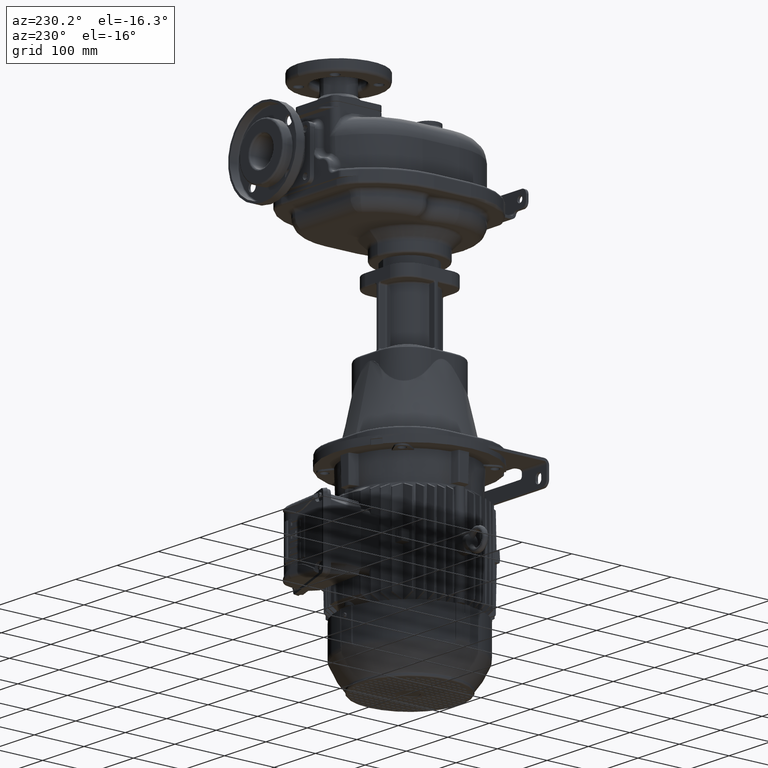
[diagram: clean part render]
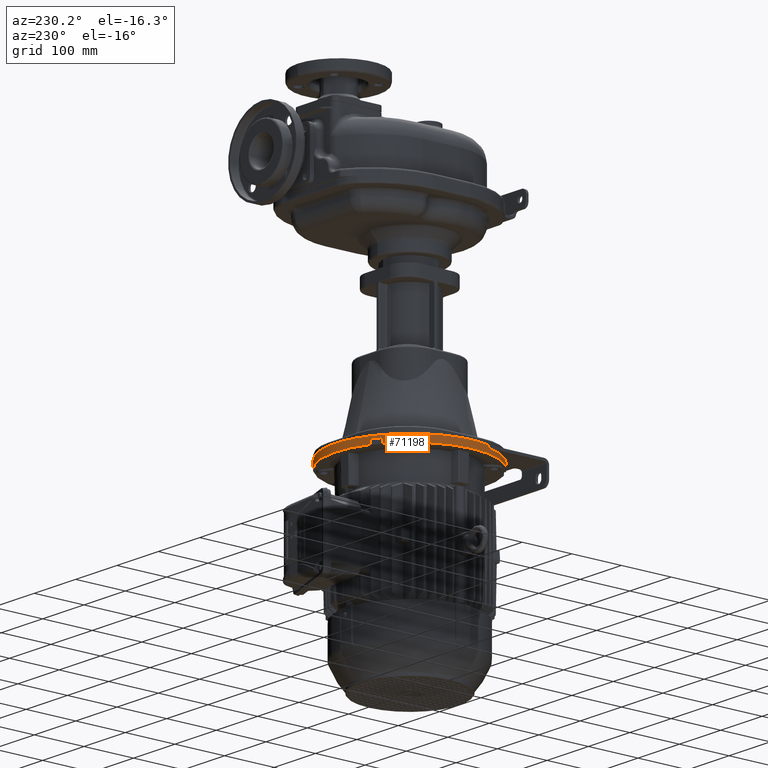
[diagram: same view with one face highlighted and labeled with its STEP entity id]
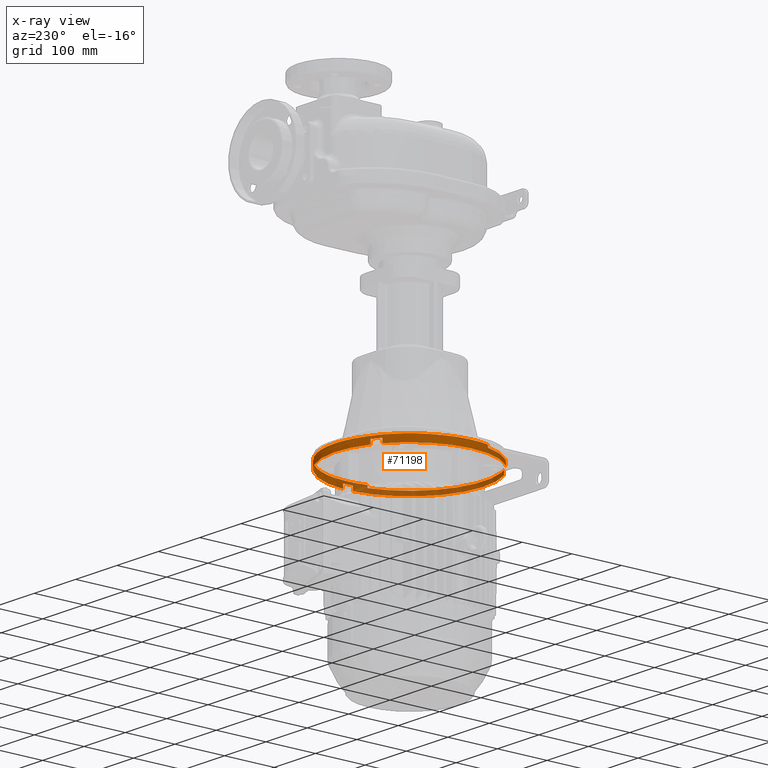
[diagram: x-ray of the same camera — body ghosted, the highlighted face saturated]
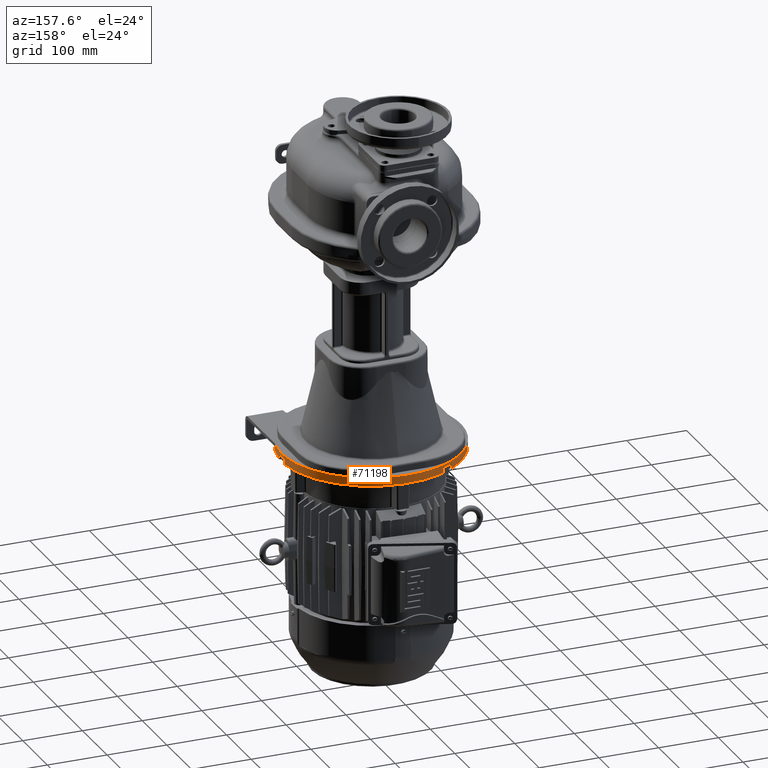
[diagram: same view with one face highlighted and labeled with its STEP entity id]
A machine part, auxiliary view. The second image highlights one B-rep face of the part: STEP entity #71198.
The next image is the same camera in x-ray: the body ghosted, the highlighted face saturated — about 31% of this face is hidden behind the body in this view.
A second angle (auxiliary view) of the same face is appended — the face is thin or edge-on in the first view.
In plain terms, the highlighted cylindrical surface (partial cylindrical patch) has radius 150 mm, axis along (0, 0, -1).
Its self-contained STEP definition (entity closure, byte-faithful):
#17651=CARTESIAN_POINT('',(0.E0,1.6E2,-4.465E2));
#17652=DIRECTION('',(0.E0,0.E0,-1.E0));
#17653=DIRECTION('',(-4.411526246509E-1,8.974320931211E-1,0.E0));
#17654=AXIS2_PLACEMENT_3D('',#17651,#17652,#17653);
#17680=CARTESIAN_POINT('',(0.E0,1.6E2,-4.465E2));
#17681=DIRECTION('',(0.E0,0.E0,-1.E0));
#17682=DIRECTION('',(9.977753031397E-1,-6.666666666667E-2,0.E0));
#17683=AXIS2_PLACEMENT_3D('',#17680,#17681,#17682);
#17832=CARTESIAN_POINT('',(0.E0,1.6E2,-4.375E2));
#17833=DIRECTION('',(0.E0,0.E0,-1.E0));
#17834=DIRECTION('',(9.977753031397E-1,6.666666666667E-2,0.E0));
#17835=AXIS2_PLACEMENT_3D('',#17832,#17833,#17834);
#17857=DIRECTION('',(0.E0,0.E0,1.E0));
#17858=VECTOR('',#17857,9.E0);
#17859=CARTESIAN_POINT('',(1.496662954710E2,1.5E2,-4.465E2));
#17860=LINE('',#17859,#17858);
#17861=DIRECTION('',(0.E0,0.E0,-1.E0));
#17862=VECTOR('',#17861,9.E0);
#17863=CARTESIAN_POINT('',(-6.617289369763E1,2.538518603184E1,-4.375E2));
#17864=LINE('',#17863,#17862);
#17865=DIRECTION('',(2.273736754432E-14,0.E0,1.E0));
#17866=VECTOR('',#17865,5.E0);
#17867=CARTESIAN_POINT('',(1.455882352941E2,1.238881495359E2,-4.375E2));
#17868=LINE('',#17867,#17866);
#17869=DIRECTION('',(-2.842170943040E-14,4.263256414561E-14,1.E0));
#17870=VECTOR('',#17869,5.E0);
#17871=CARTESIAN_POINT('',(-1.455882352941E2,1.238881495359E2,-4.375E2));
#17872=LINE('',#17871,#17870);
#17873=DIRECTION('',(0.E0,0.E0,1.E0));
#17874=VECTOR('',#17873,9.E0);
#17875=CARTESIAN_POINT('',(-8.349340177332E1,3.538518603184E1,-4.465E2));
#17876=LINE('',#17875,#17874);
#17877=CARTESIAN_POINT('',(0.E0,1.6E2,-4.465E2));
#17878=DIRECTION('',(0.E0,0.E0,-1.E0));
#17879=DIRECTION('',(-5.566226784888E-1,-8.307654264544E-1,0.E0));
#17880=AXIS2_PLACEMENT_3D('',#17877,#17878,#17879);
#17882=DIRECTION('',(0.E0,0.E0,-1.E0));
#17883=VECTOR('',#17882,9.E0);
#17884=CARTESIAN_POINT('',(-8.349340177332E1,2.846148139682E2,-4.375E2));
#17885=LINE('',#17884,#17883);
#17886=DIRECTION('',(0.E0,0.E0,1.E0));
#17887=VECTOR('',#17886,9.E0);
#17888=CARTESIAN_POINT('',(-6.617289369763E1,2.946148139682E2,-4.465E2));
#17889=LINE('',#17888,#17887);
#17890=DIRECTION('',(0.E0,0.E0,-1.E0));
#17891=VECTOR('',#17890,9.E0);
#17892=CARTESIAN_POINT('',(1.496662954710E2,1.7E2,-4.375E2));
#17893=LINE('',#17892,#17891);
#17910=CARTESIAN_POINT('',(0.E0,1.6E2,-4.375E2));
#17911=DIRECTION('',(0.E0,0.E0,-1.E0));
#17912=DIRECTION('',(-5.566226784888E-1,-8.307654264544E-1,0.E0));
#17913=AXIS2_PLACEMENT_3D('',#17910,#17911,#17912);
#17927=CARTESIAN_POINT('',(0.E0,1.6E2,-4.375E2));
#17928=DIRECTION('',(0.E0,0.E0,-1.E0));
#17929=DIRECTION('',(-3.590109871423E-1,-9.333333333333E-1,0.E0));
#17930=AXIS2_PLACEMENT_3D('',#17927,#17928,#17929);
#17983=CARTESIAN_POINT('',(0.E0,1.6E2,-4.325E2));
#17984=DIRECTION('',(0.E0,0.E0,-1.E0));
#17985=DIRECTION('',(-9.705882352941E-1,-2.407456697609E-1,0.E0));
#17986=AXIS2_PLACEMENT_3D('',#17983,#17984,#17985);
#18018=CARTESIAN_POINT('',(0.E0,1.6E2,-4.375E2));
#18019=DIRECTION('',(0.E0,0.E0,-1.E0));
#18020=DIRECTION('',(9.705882352941E-1,-2.407456697610E-1,0.E0));
#18021=AXIS2_PLACEMENT_3D('',#18018,#18019,#18020);
#18047=CARTESIAN_POINT('',(0.E0,1.6E2,-4.375E2));
#18048=DIRECTION('',(0.E0,0.E0,1.E0));
#18049=DIRECTION('',(-3.590109871423E-1,-9.333333333333E-1,0.E0));
#18050=AXIS2_PLACEMENT_3D('',#18047,#18048,#18049);
#29590=CARTESIAN_POINT('',(0.E0,1.6E2,-4.375E2));
#29591=DIRECTION('',(0.E0,0.E0,-1.E0));
#29592=DIRECTION('',(-5.566226784888E-1,8.307654264544E-1,0.E0));
#29593=AXIS2_PLACEMENT_3D('',#29590,#29591,#29592);
#43521=CARTESIAN_POINT('',(-1.455882352941E2,1.238881495359E2,-4.325E2));
#43522=VERTEX_POINT('',#43521);
#43523=CARTESIAN_POINT('',(1.455882352941E2,1.238881495359E2,-4.325E2));
#43524=VERTEX_POINT('',#43523);
#49743=CARTESIAN_POINT('',(-6.617289369763E1,2.538518603184E1,-4.465E2));
#49745=VERTEX_POINT('',#49743);
#49747=CARTESIAN_POINT('',(1.496662954710E2,1.5E2,-4.465E2));
#49748=VERTEX_POINT('',#49747);
#49751=CARTESIAN_POINT('',(-8.349340177332E1,3.538518603184E1,-4.465E2));
#49752=VERTEX_POINT('',#49751);
#49757=CARTESIAN_POINT('',(1.496662954710E2,1.7E2,-4.465E2));
#49758=VERTEX_POINT('',#49757);
#49759=CARTESIAN_POINT('',(-6.617289369763E1,2.946148139682E2,-4.465E2));
#49760=VERTEX_POINT('',#49759);
#49769=CARTESIAN_POINT('',(-8.349340177332E1,2.846148139682E2,-4.465E2));
#49770=VERTEX_POINT('',#49769);
#50192=CARTESIAN_POINT('',(-8.349340177332E1,2.846148139682E2,-4.375E2));
#50193=VERTEX_POINT('',#50192);
#50194=CARTESIAN_POINT('',(-6.617289369763E1,2.538518603184E1,-4.375E2));
#50196=VERTEX_POINT('',#50194);
#50198=CARTESIAN_POINT('',(-6.617289369763E1,2.946148139682E2,-4.375E2));
#50199=VERTEX_POINT('',#50198);
#50201=CARTESIAN_POINT('',(1.496662954710E2,1.5E2,-4.375E2));
#50203=VERTEX_POINT('',#50201);
#50206=CARTESIAN_POINT('',(-8.349340177332E1,3.538518603184E1,-4.375E2));
#50207=VERTEX_POINT('',#50206);
#50208=CARTESIAN_POINT('',(1.496662954710E2,1.7E2,-4.375E2));
#50209=VERTEX_POINT('',#50208);
#50210=CARTESIAN_POINT('',(1.455882352941E2,1.238881495359E2,-4.375E2));
#50211=CARTESIAN_POINT('',(5.385164807134E1,2.E1,-4.375E2));
#50212=VERTEX_POINT('',#50210);
#50213=VERTEX_POINT('',#50211);
#50214=CARTESIAN_POINT('',(-5.385164807134E1,2.E1,-4.375E2));
#50215=VERTEX_POINT('',#50214);
#50216=CARTESIAN_POINT('',(-1.455882352941E2,1.238881495359E2,-4.375E2));
#50217=VERTEX_POINT('',#50216);
#71161=CARTESIAN_POINT('',(0.E0,1.6E2,-4.35E2));
#71162=DIRECTION('',(0.E0,0.E0,-1.E0));
#71163=DIRECTION('',(-9.666666666667E-1,-2.560381915956E-1,0.E0));
#71164=AXIS2_PLACEMENT_3D('',#71161,#71162,#71163);
#71165=CYLINDRICAL_SURFACE('',#71164,1.5E2);
#71166=ORIENTED_EDGE('',*,*,#71127,.T.);
#71167=ORIENTED_EDGE('',*,*,#71144,.F.);
#71168=ORIENTED_EDGE('',*,*,#71005,.T.);
#71170=ORIENTED_EDGE('',*,*,#71169,.F.);
#71172=ORIENTED_EDGE('',*,*,#71171,.F.);
#71174=ORIENTED_EDGE('',*,*,#71173,.T.);
#71176=ORIENTED_EDGE('',*,*,#71175,.F.);
#71178=ORIENTED_EDGE('',*,*,#71177,.T.);
#71180=ORIENTED_EDGE('',*,*,#71179,.F.);
#71182=ORIENTED_EDGE('',*,*,#71181,.F.);
#71184=ORIENTED_EDGE('',*,*,#71183,.F.);
#71186=ORIENTED_EDGE('',*,*,#71185,.F.);
#71187=ORIENTED_EDGE('',*,*,#70997,.T.);
#71189=ORIENTED_EDGE('',*,*,#71188,.F.);
#71191=ORIENTED_EDGE('',*,*,#71190,.T.);
#71193=ORIENTED_EDGE('',*,*,#71192,.F.);
#71194=ORIENTED_EDGE('',*,*,#70989,.T.);
#71195=ORIENTED_EDGE('',*,*,#71112,.F.);
#71196=EDGE_LOOP('',(#71166,#71167,#71168,#71170,#71172,#71174,#71176,#71178,
#71180,#71182,#71184,#71186,#71187,#71189,#71191,#71193,#71194,#71195));
#71197=FACE_OUTER_BOUND('',#71196,.F.);
#71198=ADVANCED_FACE('',(#71197),#71165,.T.);
#17655=CIRCLE('',#17654,1.5E2);
#17684=CIRCLE('',#17683,1.5E2);
#17836=CIRCLE('',#17835,1.5E2);
#17881=CIRCLE('',#17880,1.5E2);
#17914=CIRCLE('',#17913,1.5E2);
#17931=CIRCLE('',#17930,1.5E2);
#17987=CIRCLE('',#17986,1.5E2);
#18022=CIRCLE('',#18021,1.5E2);
#18051=CIRCLE('',#18050,1.5E2);
#29594=CIRCLE('',#29593,1.5E2);
#70989=EDGE_CURVE('',#49760,#49758,#17655,.T.);
#70997=EDGE_CURVE('',#49752,#49770,#17881,.T.);
#71005=EDGE_CURVE('',#49748,#49745,#17684,.T.);
#71112=EDGE_CURVE('',#50209,#49758,#17893,.T.);
#71127=EDGE_CURVE('',#50209,#50203,#17836,.T.);
#71144=EDGE_CURVE('',#49748,#50203,#17860,.T.);
#71169=EDGE_CURVE('',#50196,#49745,#17864,.T.);
#71171=EDGE_CURVE('',#50215,#50196,#17931,.T.);
#71173=EDGE_CURVE('',#50215,#50213,#18051,.T.);
#71175=EDGE_CURVE('',#50212,#50213,#18022,.T.);
#71177=EDGE_CURVE('',#50212,#43524,#17868,.T.);
#71179=EDGE_CURVE('',#43522,#43524,#17987,.T.);
#71181=EDGE_CURVE('',#50217,#43522,#17872,.T.);
#71183=EDGE_CURVE('',#50207,#50217,#17914,.T.);
#71185=EDGE_CURVE('',#49752,#50207,#17876,.T.);
#71188=EDGE_CURVE('',#50193,#49770,#17885,.T.);
#71190=EDGE_CURVE('',#50193,#50199,#29594,.T.);
#71192=EDGE_CURVE('',#49760,#50199,#17889,.T.);